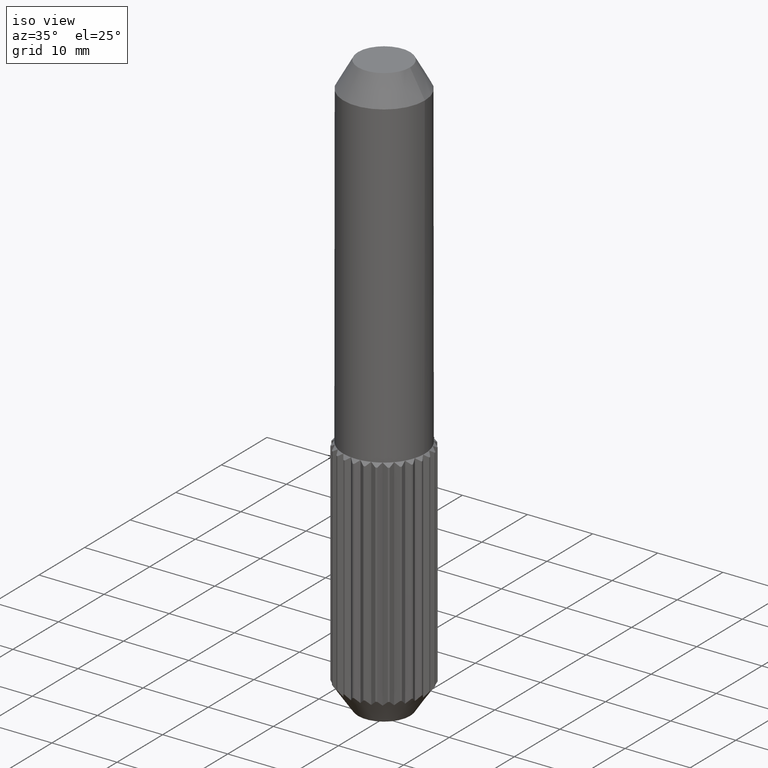
[diagram: clean part render]
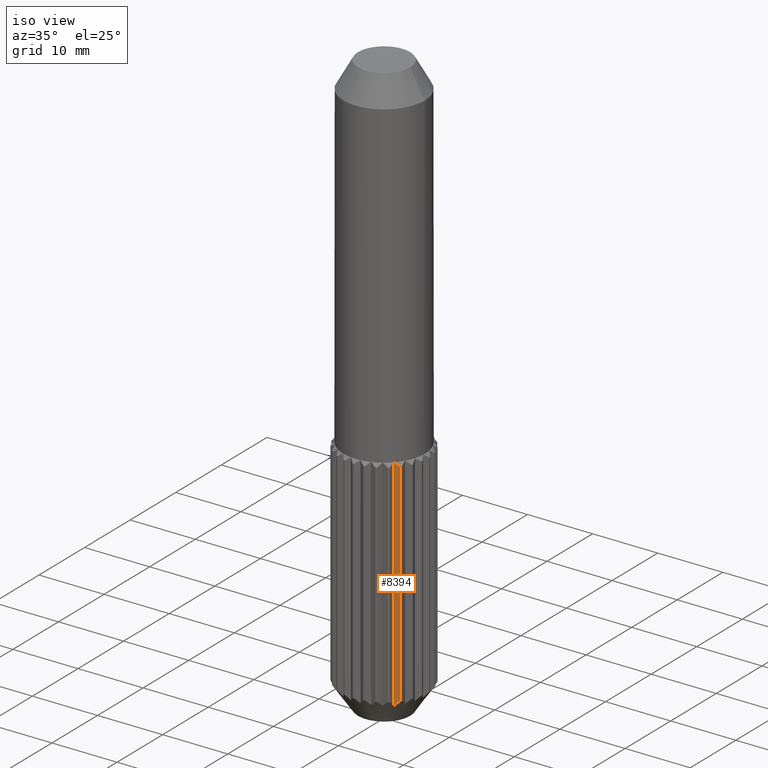
[diagram: same view with one face highlighted and labeled with its STEP entity id]
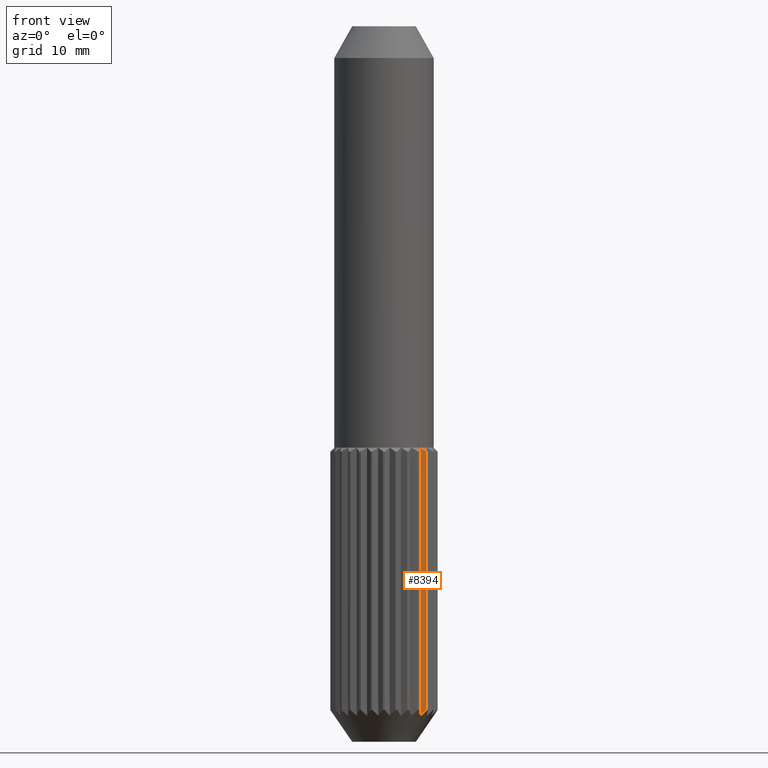
[diagram: same view with one face highlighted and labeled with its STEP entity id]
A machine part, iso view. The second image highlights one B-rep face of the part: STEP entity #8394.
A second angle (front view) of the same face is appended — the face is thin or edge-on in the first view.
In plain terms, the highlighted planar face has unit normal (-0.2022, 0.9794, 0).
Its self-contained STEP definition (entity closure, byte-faithful):
#71 = DIRECTION ( 'NONE',  ( -0.000000000000000000, -0.000000000000000000, -1.000000000000000000 ) ) ;
#204 = AXIS2_PLACEMENT_3D ( 'NONE', #8939, #7750, #13663 ) ;
#284 = LINE ( 'NONE', #14452, #12837 ) ;
#376 = CARTESIAN_POINT ( 'NONE',  ( 4.545835727637337342, -4.289274709940589680, -41.72727272727274084 ) ) ;
#1343 = CARTESIAN_POINT ( 'NONE',  ( 4.545835727637337342, -4.289274709940589680, -8.000000000000007105 ) ) ;
#2738 = EDGE_LOOP ( 'NONE', ( #10475, #9986, #14241, #6372 ) ) ;
#2826 = CARTESIAN_POINT ( 'NONE',  ( 4.545835727637337342, -4.289274709940589680, -41.72727272727274084 ) ) ;
#3450 = FACE_OUTER_BOUND ( 'NONE', #2738, .T. ) ;
#3510 = B_SPLINE_CURVE_WITH_KNOTS ( 'NONE', 3,
 ( #10034, #9924, #4135, #2826 ),
 .UNSPECIFIED., .F., .F.,
 ( 4, 4 ),
 ( 2.812662121303380420E-07, 0.001091956810158249127 ),
 .UNSPECIFIED. ) ;
#4135 = CARTESIAN_POINT ( 'NONE',  ( 4.819640302798888776, -4.232755221101308862, -41.49402344586175673 ) ) ;
#4726 = CARTESIAN_POINT ( 'NONE',  ( 5.343169247046735570, -4.124686945383131409, -8.500000000000023093 ) ) ;
#5267 = PLANE ( 'NONE',  #204 ) ;
#5290 = LINE ( 'NONE', #1343, #10258 ) ;
#5993 = CARTESIAN_POINT ( 'NONE',  ( 5.081769870089578589, -4.178645719299922234, -8.326053620475398986 ) ) ;
#6120 = EDGE_CURVE ( 'NONE', #7130, #10339, #10521, .T. ) ;
#6372 = ORIENTED_EDGE ( 'NONE', *, *, #11424, .F. ) ;
#7130 = VERTEX_POINT ( 'NONE', #4726 ) ;
#7141 = CARTESIAN_POINT ( 'NONE',  ( 5.343169247046735570, -4.124686945383131409, -8.500000000000023093 ) ) ;
#7750 = DIRECTION ( 'NONE',  ( -0.2021605962620258434, 0.9793523846496633434, 0.000000000000000000 ) ) ;
#8394 = ADVANCED_FACE ( 'NONE', ( #3450 ), #5267, .F. ) ;
#8690 = DIRECTION ( 'NONE',  ( -0.000000000000000000, -0.000000000000000000, -1.000000000000000000 ) ) ;
#8939 = CARTESIAN_POINT ( 'NONE',  ( 4.545835727637337342, -4.289274709940589680, -8.000000000000007105 ) ) ;
#9454 = CARTESIAN_POINT ( 'NONE',  ( 4.545835727637345336, -4.289274709940579022, -8.000000000000007105 ) ) ;
#9924 = CARTESIAN_POINT ( 'NONE',  ( 5.084415041768802546, -4.178099695731421370, -41.25045260888490617 ) ) ;
#9986 = ORIENTED_EDGE ( 'NONE', *, *, #6120, .T. ) ;
#9989 = EDGE_CURVE ( 'NONE', #7130, #14554, #284, .T. ) ;
#10017 = CARTESIAN_POINT ( 'NONE',  ( 4.545835727637345336, -4.289274709940579022, -8.000000000000007105 ) ) ;
#10034 = CARTESIAN_POINT ( 'NONE',  ( 5.343169247046735570, -4.124686945383131409, -41.00000000000001421 ) ) ;
#10258 = VECTOR ( 'NONE', #8690, 1000.000000000000000 ) ;
#10339 = VERTEX_POINT ( 'NONE', #10017 ) ;
#10475 = ORIENTED_EDGE ( 'NONE', *, *, #9989, .F. ) ;
#10521 = B_SPLINE_CURVE_WITH_KNOTS ( 'NONE', 3,
 ( #7141, #5993, #11877, #9454 ),
 .UNSPECIFIED., .F., .F.,
 ( 4, 4 ),
 ( 2.436692758575631828E-07, 0.0009556649760382330411 ),
 .UNSPECIFIED. ) ;
#11424 = EDGE_CURVE ( 'NONE', #14554, #12295, #3510, .T. ) ;
#11877 = CARTESIAN_POINT ( 'NONE',  ( 4.816510092741888904, -4.233401367617585009, -8.158525613641923968 ) ) ;
#12295 = VERTEX_POINT ( 'NONE', #376 ) ;
#12837 = VECTOR ( 'NONE', #71, 1000.000000000000000 ) ;
#13171 = CARTESIAN_POINT ( 'NONE',  ( 5.343169247046735570, -4.124686945383131409, -41.00000000000001421 ) ) ;
#13353 = EDGE_CURVE ( 'NONE', #10339, #12295, #5290, .T. ) ;
#13663 = DIRECTION ( 'NONE',  ( -0.9793523846496633434, -0.2021605962620258434, 0.000000000000000000 ) ) ;
#14241 = ORIENTED_EDGE ( 'NONE', *, *, #13353, .T. ) ;
#14452 = CARTESIAN_POINT ( 'NONE',  ( 5.343169247046735570, -4.124686945383131409, -8.000000000000007105 ) ) ;
#14554 = VERTEX_POINT ( 'NONE', #13171 ) ;